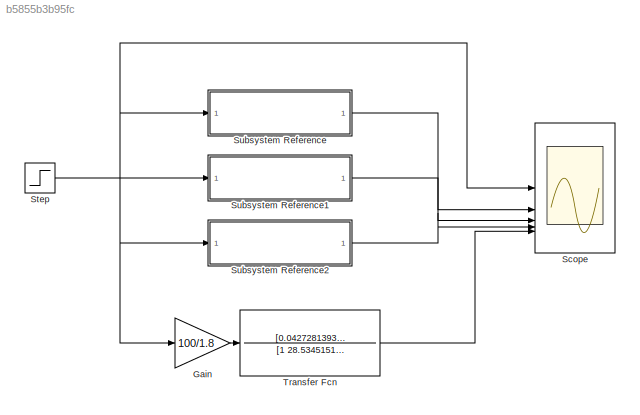
MODEL slx_b5855b3b95fc
KIND model
CONFIG AbsTol = auto
CONFIG EnableMultiTasking = off
CONFIG FixedStep = auto
CONFIG MaxStep = auto
CONFIG MinStep = auto
CONFIG RelTol = 1e-3
CONFIG SampleTimeConstraint = Unconstrained
CONFIG SolverName = VariableStepAuto
CONFIG StartTime = 0.0
CONFIG StopTime = 10.0
BLOCK [Gain] Gain
  Gain = 100/1.8
BLOCK [Scope] Scope
  Floating = off
  NumInputPorts = 5
  ScopeSpecificationString = Simulink.scopes.TimeScopeBlockCfg('CurrentConfiguration', extmgr.ConfigurationSet(extmgr.Configuration('Core','General UI',true),extmgr.Configuration('Core','Source UI',true),extmgr.Configuration('Sources','WiredSimulink',true),extmgr.Configuration('Visuals','Time Domain',true,'SerializedDisplays',{struct('MinYLimReal','-0.625','MaxYLimReal','5.625','YLabelReal','','MinYLimMag','0.00000','MaxYLimM...<+2076ch>
BLOCK [Step] Step
  After = 5
  SampleTime = 0
BLOCK [SubSystem] Subsystem Reference
  ReferencedSubsystem = SubsMotorEcuacionesDiferenciales
BLOCK [SubSystem] Subsystem Reference1
  ReferencedSubsystem = SubsMotorVariabledeEstado
BLOCK [SubSystem] Subsystem Reference2
  ReferencedSubsystem = SubsMotorSimscape
BLOCK [TransferFcn] Transfer Fcn
  Denominator = [1 28.534515186996366]
  Numerator = [0.042728139375531]
LINE Gain:1 -> Transfer Fcn:1
NET Step:1 -> Gain:1, Scope:1, Subsystem Reference1:1, Subsystem Reference2:1, Subsystem Reference:1
LINE Subsystem Reference1:1 -> Scope:3
LINE Subsystem Reference2:1 -> Scope:4
LINE Subsystem Reference:1 -> Scope:2
LINE Transfer Fcn:1 -> Scope:5
note: NET lines group one-source signal fan-out (src -> all destinations, sorted); 1:1 wires keep LINE
